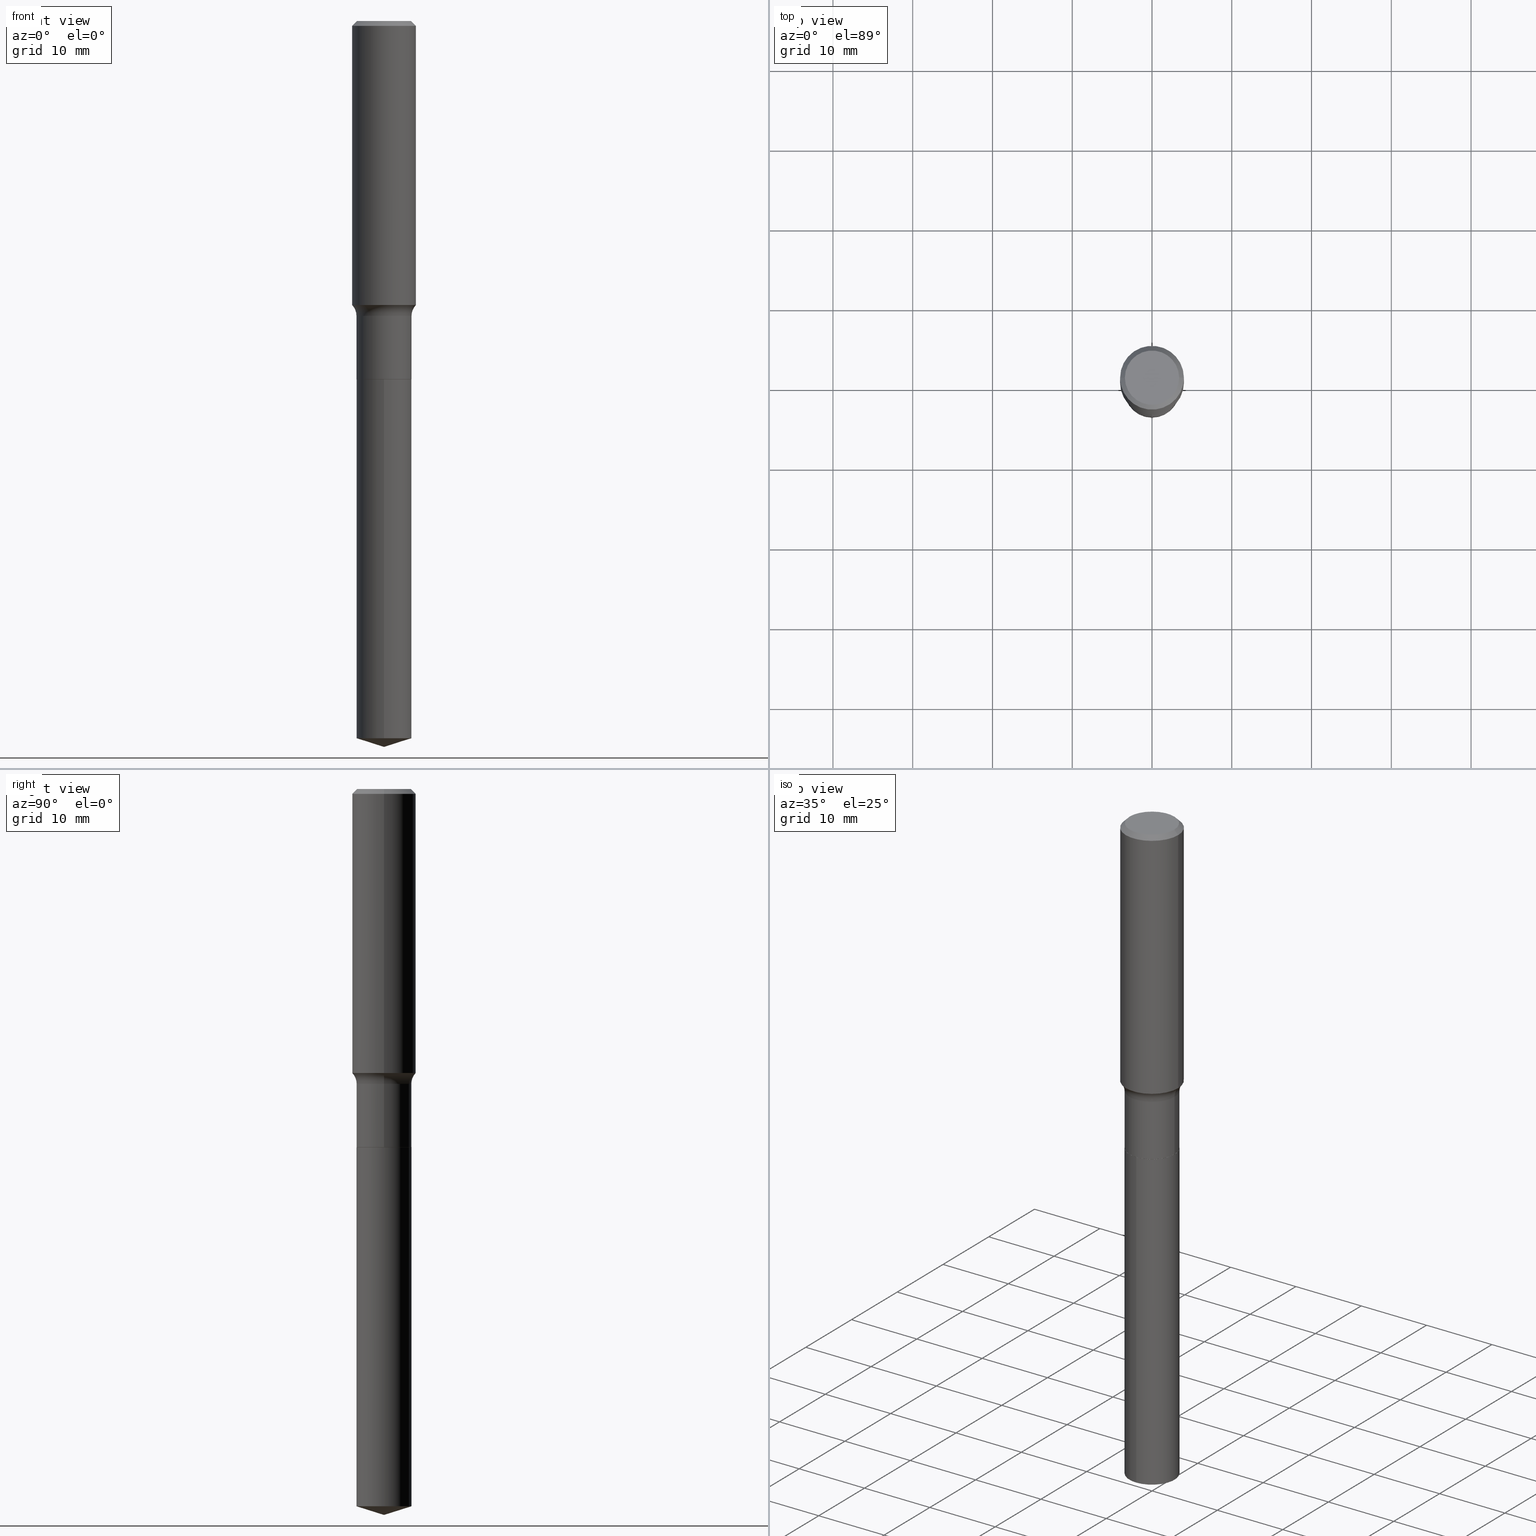
[diagram: canonical four-view strip — front | top / right | iso, engineering-drawing reading convention]
A machine part, canonical four-view strip (front | top / right | iso — engineering-drawing reading convention). The complete STEP part file that produces these views, byte-faithful:
ISO-10303-21;
HEADER;
FILE_DESCRIPTION (( 'STEP AP203' ),
    '1' );
FILE_NAME ('64141.STEP',
    '2024-04-19T15:19:52',
    ( '' ),
    ( '' ),
    'SwSTEP 2.0',
    'SolidWorks 2023',
    '' );
FILE_SCHEMA (( 'CONFIG_CONTROL_DESIGN' ));
ENDSEC;

DATA;
#1 = VERTEX_POINT ( 'NONE', #352 ) ;
#2 = CARTESIAN_POINT ( 'NONE',  ( -0.1575000000000001676, -3.773744865766396882E-15, -1.401367843543948277 ) ) ;
#3 = EDGE_LOOP ( 'NONE', ( #148, #248, #253 ) ) ;
#4 = ADVANCED_FACE ( 'NONE', ( #429 ), #442, .T. ) ;
#5 = DIRECTION ( 'NONE',  ( 1.000000000000000000, 0.000000000000000000, 0.000000000000000000 ) ) ;
#6 = VERTEX_POINT ( 'NONE', #154 ) ;
#7 = CIRCLE ( 'NONE', #168, 0.1358499999999999708 ) ;
#8 = APPLICATION_CONTEXT ( 'configuration controlled 3d designs of mechanical parts and assemblies' ) ;
#9 = APPROVAL_STATUS ( 'not_yet_approved' ) ;
#10 = LINE ( 'NONE', #126, #236 ) ;
#11 = APPROVAL_DATE_TIME ( #357, #312 ) ;
#12 = DIRECTION ( 'NONE',  ( -6.982962677686265133E-15, -1.000000000000000000, 3.500519750498763991E-15 ) ) ;
#13 = CALENDAR_DATE ( 2024, 19, 4 ) ;
#14 = DIRECTION ( 'NONE',  ( 1.000000000000000000, -6.982962677686265133E-15, 4.883557194083112901E-29 ) ) ;
#15 = CC_DESIGN_DATE_AND_TIME_ASSIGNMENT ( #121, #281, ( #353 ) ) ;
#16 = VECTOR ( 'NONE', #222, 39.37007874015748143 ) ;
#17 = AXIS2_PLACEMENT_3D ( 'NONE', #337, #143, #492 ) ;
#18 = COORDINATED_UNIVERSAL_TIME_OFFSET ( 5, 0, .BEHIND. ) ;
#19 = DIRECTION ( 'NONE',  ( -1.000000000000000000, 6.982962677686265922E-15, 0.000000000000000000 ) ) ;
#20 = LINE ( 'NONE', #358, #311 ) ;
#21 = FACE_OUTER_BOUND ( 'NONE', #310, .T. ) ;
#22 = AXIS2_PLACEMENT_3D ( 'NONE', #463, #280, #124 ) ;
#23 = DIRECTION ( 'NONE',  ( 2.445500415812927598E-29, -3.491436072057040114E-15, -1.000000000000000000 ) ) ;
#24 = CARTESIAN_POINT ( 'NONE',  ( 0.1575000000000000011, -1.163014681279185964E-15, -0.02362500000000014588 ) ) ;
#25 = ADVANCED_FACE ( 'NONE', ( #206 ), #363, .F. ) ;
#26 = ORIENTED_EDGE ( 'NONE', *, *, #29, .F. ) ;
#27 = DIRECTION ( 'NONE',  ( -2.445468806185136597E-29, 3.491481338843145583E-15, 1.000000000000000000 ) ) ;
#28 = ORIENTED_EDGE ( 'NONE', *, *, #32, .F. ) ;
#29 = EDGE_CURVE ( 'NONE', #37, #221, #10, .T. ) ;
#30 = AXIS2_PLACEMENT_3D ( 'NONE', #165, #321, #14 ) ;
#31 = CARTESIAN_POINT ( 'NONE',  ( -0.1353499999999999981, -5.210521117955616385E-15, -1.767799999999999816 ) ) ;
#32 = EDGE_CURVE ( 'NONE', #400, #1, #244, .T. ) ;
#33 = ADVANCED_BREP_SHAPE_REPRESENTATION ( '64141', ( #204, #379, #85 ), #50 ) ;
#34 = DIRECTION ( 'NONE',  ( 1.000000000000000000, -6.982962677686268288E-15, 0.000000000000000000 ) ) ;
#35 = ORIENTED_EDGE ( 'NONE', *, *, #210, .T. ) ;
#36 = CARTESIAN_POINT ( 'NONE',  ( 0.1575000000000000011, -1.182302868365756679E-15, -0.02362500000000014588 ) ) ;
#37 = VERTEX_POINT ( 'NONE', #461 ) ;
#38 = FACE_OUTER_BOUND ( 'NONE', #454, .T. ) ;
#39 = CIRCLE ( 'NONE', #339, 0.07799999999999995826 ) ;
#40 = EDGE_LOOP ( 'NONE', ( #226, #330, #259, #304 ) ) ;
#41 = DIRECTION ( 'NONE',  ( 1.000000000000000000, -6.982962677686265133E-15, 0.000000000000000000 ) ) ;
#42 = EDGE_LOOP ( 'NONE', ( #78, #265, #342, #371 ) ) ;
#43 = PERSON_AND_ORGANIZATION ( #120, #175 ) ;
#44 = ORIENTED_EDGE ( 'NONE', *, *, #452, .T. ) ;
#45 = CC_DESIGN_PERSON_AND_ORGANIZATION_ASSIGNMENT ( #43, #459, ( #107 ) ) ;
#46 = CALENDAR_DATE ( 2024, 19, 4 ) ;
#47 = AXIS2_PLACEMENT_3D ( 'NONE', #82, #316, #194 ) ;
#48 = ORIENTED_EDGE ( 'NONE', *, *, #362, .T. ) ;
#49 = VECTOR ( 'NONE', #329, 39.37007874015748143 ) ;
#50 =( GEOMETRIC_REPRESENTATION_CONTEXT ( 3 ) GLOBAL_UNCERTAINTY_ASSIGNED_CONTEXT ( ( #297 ) ) GLOBAL_UNIT_ASSIGNED_CONTEXT ( ( #233, #433, #53 ) ) REPRESENTATION_CONTEXT ( 'NONE', 'WORKASPACE' ) );
#51 = CARTESIAN_POINT ( 'NONE',  ( 8.656689508304857644E-29, -1.235929816798233423E-14, -3.539866659530789939 ) ) ;
#52 = EDGE_CURVE ( 'NONE', #257, #37, #20, .T. ) ;
#53 =( NAMED_UNIT ( * ) SI_UNIT ( $, .STERADIAN. ) SOLID_ANGLE_UNIT ( ) );
#54 = CARTESIAN_POINT ( 'NONE',  ( -0.1358499999999999708, -4.660551574747864359E-15, -1.455299999999999816 ) ) ;
#55 = CARTESIAN_POINT ( 'NONE',  ( 6.814658440794727407E-29, -2.604186862857385143E-15, -1.767800000000000260 ) ) ;
#56 = AXIS2_PLACEMENT_3D ( 'NONE', #381, #147, #453 ) ;
#57 = DATE_TIME_ROLE ( 'classification_date' ) ;
#58 = DIRECTION ( 'NONE',  ( 2.445468806185136597E-29, -3.491481338843145583E-15, -1.000000000000000000 ) ) ;
#59 = APPROVAL_ROLE ( '' ) ;
#60 = DIRECTION ( 'NONE',  ( -2.445468806185136597E-29, 3.491481338843145583E-15, 1.000000000000000000 ) ) ;
#61 = VERTEX_POINT ( 'NONE', #274 ) ;
#62 = DIRECTION ( 'NONE',  ( -2.445468806185136877E-29, 3.491481338843145188E-15, 1.000000000000000000 ) ) ;
#63 = EDGE_CURVE ( 'NONE', #136, #221, #7, .T. ) ;
#64 = CARTESIAN_POINT ( 'NONE',  ( 4.323099755574084481E-29, -6.172240710806911776E-15, -1.767799999999999816 ) ) ;
#65 = CARTESIAN_POINT ( 'NONE',  ( 0.1575000000000000844, -1.099816621735587677E-15, 7.679978421878603638E-30 ) ) ;
#66 = DIRECTION ( 'NONE',  ( 1.000000000000000000, -6.982962677686266711E-15, 4.876170806578254279E-29 ) ) ;
#67 = AXIS2_PLACEMENT_3D ( 'NONE', #55, #324, #209 ) ;
#68 = APPROVAL_PERSON_ORGANIZATION ( #272, #312, #389 ) ;
#69 = LINE ( 'NONE', #184, #457 ) ;
#70 = ORIENTED_EDGE ( 'NONE', *, *, #63, .T. ) ;
#71 = CARTESIAN_POINT ( 'NONE',  ( -1.002970424325033577E-46, 1.431975951230896486E-32, 4.101342130344485961E-18 ) ) ;
#72 = ORIENTED_EDGE ( 'NONE', *, *, #343, .F. ) ;
#73 = CARTESIAN_POINT ( 'NONE',  ( 9.652723065301828668E-16, 0.1358499999999876473, -3.539866659530790383 ) ) ;
#74 = ORIENTED_EDGE ( 'NONE', *, *, #468, .T. ) ;
#75 = CARTESIAN_POINT ( 'NONE',  ( 4.321877021170992240E-29, -6.170494970137492639E-15, -1.767300000000000315 ) ) ;
#76 = CIRCLE ( 'NONE', #359, 0.1353499999999999981 ) ;
#77 = AXIS2_PLACEMENT_3D ( 'NONE', #419, #149, #466 ) ;
#78 = ORIENTED_EDGE ( 'NONE', *, *, #112, .T. ) ;
#79 = DIRECTION ( 'NONE',  ( -6.659769872151621044E-15, -0.9537169507482251563, 0.3007057995042784482 ) ) ;
#80 = EDGE_LOOP ( 'NONE', ( #103, #105, #345, #390 ) ) ;
#81 = CALENDAR_DATE ( 2024, 19, 4 ) ;
#82 = CARTESIAN_POINT ( 'NONE',  ( 3.427001347377658773E-29, -4.892849674588556064E-15, -1.401367843543948277 ) ) ;
#83 = AXIS2_PLACEMENT_3D ( 'NONE', #479, #23, #170 ) ;
#84 = CARTESIAN_POINT ( 'NONE',  ( 3.558890753641229295E-29, -5.081152792418429447E-15, -1.455299999999999816 ) ) ;
#85 = AXIS2_PLACEMENT_3D ( 'NONE', #238, #127, #5 ) ;
#86 = CC_DESIGN_PERSON_AND_ORGANIZATION_ASSIGNMENT ( #195, #242, ( #478 ) ) ;
#87 = CARTESIAN_POINT ( 'NONE',  ( 5.777420054612421104E-31, -8.248624663016984002E-17, -0.02362500000000014588 ) ) ;
#88 = MECHANICAL_CONTEXT ( 'NONE', #356, 'mechanical' ) ;
#89 = DIRECTION ( 'NONE',  ( 1.000000000000000000, -6.982962677686267499E-15, 4.876176775795936353E-29 ) ) ;
#90 = COORDINATED_UNIVERSAL_TIME_OFFSET ( 5, 0, .BEHIND. ) ;
#91 = EDGE_LOOP ( 'NONE', ( #314, #375, #470, #451 ) ) ;
#92 = CONICAL_SURFACE ( 'NONE', #373, 0.1353499999999999981, 0.7853981633978239785 ) ;
#93 = CARTESIAN_POINT ( 'NONE',  ( -0.1358500000000000263, -4.660551574747864359E-15, -1.767300000000000315 ) ) ;
#94 = CARTESIAN_POINT ( 'NONE',  ( 4.323099755574084481E-29, -6.172240710806911776E-15, -1.767799999999999816 ) ) ;
#95 = EDGE_LOOP ( 'NONE', ( #418, #74, #196, #109 ) ) ;
#96 = DIRECTION ( 'NONE',  ( -2.445468806185136597E-29, 3.491481338843145583E-15, 1.000000000000000000 ) ) ;
#97 = ORIENTED_EDGE ( 'NONE', *, *, #489, .F. ) ;
#98 = AXIS2_PLACEMENT_3D ( 'NONE', #51, #119, #318 ) ;
#99 = APPROVAL ( #208, 'UNSPECIFIED' ) ;
#100 = CC_DESIGN_APPROVAL ( #263, ( #107 ) ) ;
#101 = LINE ( 'NONE', #65, #49 ) ;
#102 = CARTESIAN_POINT ( 'NONE',  ( 4.323099755574085042E-29, -6.172240710806913353E-15, -1.767800000000000260 ) ) ;
#103 = ORIENTED_EDGE ( 'NONE', *, *, #269, .F. ) ;
#104 = LINE ( 'NONE', #341, #16 ) ;
#105 = ORIENTED_EDGE ( 'NONE', *, *, #287, .T. ) ;
#106 = AXIS2_PLACEMENT_3D ( 'NONE', #288, #134, #410 ) ;
#107 = PRODUCT_DEFINITION_FORMATION_WITH_SPECIFIED_SOURCE ( 'ANY', '', #478, .NOT_KNOWN. ) ;
#108 = CARTESIAN_POINT ( 'NONE',  ( 8.761382580732956754E-29, -1.250892806060771228E-14, -3.582699999999999996 ) ) ;
#109 = ORIENTED_EDGE ( 'NONE', *, *, #275, .F. ) ;
#110 = CARTESIAN_POINT ( 'NONE',  ( 9.652723065301826696E-16, 0.1358499999999938090, -1.767800000000000704 ) ) ;
#111 = ORIENTED_EDGE ( 'NONE', *, *, #232, .F. ) ;
#112 = EDGE_CURVE ( 'NONE', #338, #378, #252, .T. ) ;
#113 = LINE ( 'NONE', #303, #430 ) ;
#114 = ORIENTED_EDGE ( 'NONE', *, *, #210, .F. ) ;
#115 = DIRECTION ( 'NONE',  ( -2.445468806185136597E-29, 3.491481338843145583E-15, 1.000000000000000000 ) ) ;
#116 = CONICAL_SURFACE ( 'NONE', #481, 0.1353499999999999981, 0.7853981633978239785 ) ;
#117 = EDGE_LOOP ( 'NONE', ( #397, #426, #246, #423 ) ) ;
#118 = EDGE_CURVE ( 'NONE', #456, #385, #437, .T. ) ;
#119 = DIRECTION ( 'NONE',  ( -2.445500415812927878E-29, 3.491436072057040114E-15, 1.000000000000000000 ) ) ;
#120 = PERSON ( 'UNSPECIFIED', 'UNSPECIFIED', 'UNSPECIFIED', ('UNSPECIFIED'), ('UNSPECIFIED'), ('UNSPECIFIED') ) ;
#121 = DATE_AND_TIME ( #46, #313 ) ;
#122 = CARTESIAN_POINT ( 'NONE',  ( -8.751810546940986882E-28, 1.249492650351285820E-13, 35.78737874015747877 ) ) ;
#123 = CARTESIAN_POINT ( 'NONE',  ( 3.427001347377658773E-29, -4.892849674588556064E-15, -1.401367843543948277 ) ) ;
#124 = DIRECTION ( 'NONE',  ( -6.982962677686266711E-15, -1.000000000000000000, 4.021859394426593130E-15 ) ) ;
#125 = DIRECTION ( 'NONE',  ( 1.000000000000000000, -6.982962677686267499E-15, 0.000000000000000000 ) ) ;
#126 = CARTESIAN_POINT ( 'NONE',  ( 0.1358499999999999708, -9.486354797636791575E-16, 6.624286149918777895E-30 ) ) ;
#127 = DIRECTION ( 'NONE',  ( 0.000000000000000000, 0.000000000000000000, 1.000000000000000000 ) ) ;
#128 = CARTESIAN_POINT ( 'NONE',  ( -5.014852121625167883E-47, 7.159879756154482429E-33, 2.050671065172242981E-18 ) ) ;
#129 = CARTESIAN_POINT ( 'NONE',  ( 0.000000000000000000, 0.000000000000000000, 0.000000000000000000 ) ) ;
#130 = VECTOR ( 'NONE', #441, 39.37007874015748143 ) ;
#131 = CALENDAR_DATE ( 2024, 19, 4 ) ;
#132 = FACE_OUTER_BOUND ( 'NONE', #420, .T. ) ;
#133 = DIRECTION ( 'NONE',  ( -0.7071067811868130271, 7.493145998871311837E-15, 0.7071067811862817853 ) ) ;
#134 = DIRECTION ( 'NONE',  ( -2.445500415812927878E-29, 3.491436072057040114E-15, 1.000000000000000000 ) ) ;
#135 = DIRECTION ( 'NONE',  ( 6.776566513254246305E-15, 0.9537169507482272657, 0.3007057995042718423 ) ) ;
#136 = VERTEX_POINT ( 'NONE', #54 ) ;
#137 = EDGE_CURVE ( 'NONE', #1, #221, #39, .T. ) ;
#138 = DIRECTION ( 'NONE',  ( -1.000000000000000000, 7.105427357601001859E-15, 0.000000000000000000 ) ) ;
#139 = DIRECTION ( 'NONE',  ( -2.445500415812927878E-29, 3.491436072057040114E-15, 1.000000000000000000 ) ) ;
#140 = ORIENTED_EDGE ( 'NONE', *, *, #388, .F. ) ;
#141 = AXIS2_PLACEMENT_3D ( 'NONE', #122, #273, #12 ) ;
#142 = AXIS2_PLACEMENT_3D ( 'NONE', #399, #331, #66 ) ;
#143 = DIRECTION ( 'NONE',  ( -2.445468806185136597E-29, 3.491481338843145583E-15, 1.000000000000000000 ) ) ;
#144 = ORIENTED_EDGE ( 'NONE', *, *, #232, .T. ) ;
#145 = DIRECTION ( 'NONE',  ( -2.445468806185136597E-29, 3.491481338843145583E-15, 1.000000000000000000 ) ) ;
#146 = ORIENTED_EDGE ( 'NONE', *, *, #295, .T. ) ;
#147 = DIRECTION ( 'NONE',  ( -2.445468806185136597E-29, 3.491481338843145583E-15, 1.000000000000000000 ) ) ;
#148 = ORIENTED_EDGE ( 'NONE', *, *, #177, .F. ) ;
#149 = DIRECTION ( 'NONE',  ( 2.445468806185136597E-29, -3.491481338843145583E-15, -1.000000000000000000 ) ) ;
#150 = CIRCLE ( 'NONE', #349, 0.1358499999999999985 ) ;
#151 = ORIENTED_EDGE ( 'NONE', *, *, #287, .F. ) ;
#152 = ADVANCED_FACE ( 'NONE', ( #322 ), #472, .T. ) ;
#153 = APPROVAL_DATE_TIME ( #158, #263 ) ;
#154 = CARTESIAN_POINT ( 'NONE',  ( -0.1353499999999999981, -5.207871890781506762E-15, -1.767799999999999816 ) ) ;
#155 = SECURITY_CLASSIFICATION_LEVEL ( 'unclassified' ) ;
#156 = VERTEX_POINT ( 'NONE', #163 ) ;
#157 = AXIS2_PLACEMENT_3D ( 'NONE', #128, #395, #428 ) ;
#158 = DATE_AND_TIME ( #13, #393 ) ;
#159 = CIRCLE ( 'NONE', #443, 0.1353499999999999981 ) ;
#160 = CYLINDRICAL_SURFACE ( 'NONE', #325, 0.1575000000000000844 ) ;
#161 = ADVANCED_FACE ( 'NONE', ( #241 ), #245, .F. ) ;
#162 = PERSON_AND_ORGANIZATION ( #120, #175 ) ;
#163 = CARTESIAN_POINT ( 'NONE',  ( 0.1338749999999999940, -1.040731925365424925E-15, 4.101342130351393887E-18 ) ) ;
#164 = ADVANCED_FACE ( 'NONE', ( #199 ), #160, .T. ) ;
#165 = CARTESIAN_POINT ( 'NONE',  ( 3.558890753641229295E-29, -5.081152792418429447E-15, -1.455299999999999816 ) ) ;
#166 = DIRECTION ( 'NONE',  ( -2.445500415812927878E-29, 3.491436072057040114E-15, 1.000000000000000000 ) ) ;
#167 = AXIS2_PLACEMENT_3D ( 'NONE', #409, #369, #251 ) ;
#168 = AXIS2_PLACEMENT_3D ( 'NONE', #84, #239, #394 ) ;
#169 = SECURITY_CLASSIFICATION ( '', '', #155 ) ;
#170 = DIRECTION ( 'NONE',  ( 6.982962677686265922E-15, 1.000000000000000000, -3.491436072057040114E-15 ) ) ;
#171 = FACE_OUTER_BOUND ( 'NONE', #179, .T. ) ;
#172 = DIRECTION ( 'NONE',  ( 1.000000000000000000, -6.982962677686265133E-15, 0.000000000000000000 ) ) ;
#173 = ADVANCED_FACE ( 'NONE', ( #243 ), #396, .F. ) ;
#174 = AXIS2_PLACEMENT_3D ( 'NONE', #71, #422, #335 ) ;
#175 = ORGANIZATION ( 'UNSPECIFIED', 'UNSPECIFIED', '' ) ;
#176 = LINE ( 'NONE', #228, #213 ) ;
#177 = EDGE_CURVE ( 'NONE', #262, #378, #446, .T. ) ;
#178 = DIRECTION ( 'NONE',  ( 1.000000000000000000, -6.982962677686266711E-15, 4.876176775795936353E-29 ) ) ;
#179 = EDGE_LOOP ( 'NONE', ( #190, #229 ) ) ;
#180 = CARTESIAN_POINT ( 'NONE',  ( -8.751810546940986882E-28, 1.249492650351285820E-13, 35.78737874015747877 ) ) ;
#181 = ORIENTED_EDGE ( 'NONE', *, *, #452, .F. ) ;
#182 = AXIS2_PLACEMENT_3D ( 'NONE', #270, #139, #425 ) ;
#183 = AXIS2_PLACEMENT_3D ( 'NONE', #220, #484, #138 ) ;
#184 = CARTESIAN_POINT ( 'NONE',  ( 9.652723065301390850E-16, 0.1358499999999938368, -1.767800000000000704 ) ) ;
#185 = EDGE_CURVE ( 'NONE', #221, #136, #237, .T. ) ;
#186 = EDGE_LOOP ( 'NONE', ( #307, #146 ) ) ;
#187 = DIRECTION ( 'NONE',  ( 1.000000000000000000, -6.982962677686268288E-15, 0.000000000000000000 ) ) ;
#188 = EDGE_LOOP ( 'NONE', ( #181, #97, #348, #223 ) ) ;
#189 = PERSON_AND_ORGANIZATION_ROLE ( 'design_supplier' ) ;
#190 = ORIENTED_EDGE ( 'NONE', *, *, #224, .T. ) ;
#191 = ADVANCED_FACE ( 'NONE', ( #21 ), #290, .T. ) ;
#192 = APPLICATION_PROTOCOL_DEFINITION ( 'international standard', 'config_control_design', 1994, #356 ) ;
#193 = AXIS2_PLACEMENT_3D ( 'NONE', #364, #60, #439 ) ;
#194 = DIRECTION ( 'NONE',  ( 1.000000000000000000, -6.982962677686267499E-15, 0.000000000000000000 ) ) ;
#195 = PERSON_AND_ORGANIZATION ( #120, #175 ) ;
#196 = ORIENTED_EDGE ( 'NONE', *, *, #415, .F. ) ;
#197 = APPROVAL_STATUS ( 'not_yet_approved' ) ;
#198 = ADVANCED_FACE ( 'NONE', ( #249 ), #92, .T. ) ;
#199 = FACE_OUTER_BOUND ( 'NONE', #95, .T. ) ;
#200 = PERSON_AND_ORGANIZATION ( #120, #175 ) ;
#201 = VECTOR ( 'NONE', #133, 39.37007874015748854 ) ;
#202 = DIRECTION ( 'NONE',  ( -2.445468806185136877E-29, 3.491481338843145188E-15, 1.000000000000000000 ) ) ;
#203 = CC_DESIGN_SECURITY_CLASSIFICATION ( #169, ( #107 ) ) ;
#204 = MANIFOLD_SOLID_BREP ( 'Body-Move/Copy2[1]', #289 ) ;
#205 = COORDINATED_UNIVERSAL_TIME_OFFSET ( 5, 0, .BEHIND. ) ;
#206 = FACE_OUTER_BOUND ( 'NONE', #186, .T. ) ;
#207 = EDGE_CURVE ( 'NONE', #378, #338, #150, .T. ) ;
#208 = APPROVAL_STATUS ( 'not_yet_approved' ) ;
#209 = DIRECTION ( 'NONE',  ( 1.000000000000000000, -6.982962677686265922E-15, 4.876176775795935793E-29 ) ) ;
#210 = EDGE_CURVE ( 'NONE', #156, #411, #475, .T. ) ;
#211 = DATE_AND_TIME ( #277, #444 ) ;
#212 = CARTESIAN_POINT ( 'NONE',  ( -0.1358499999999999708, 9.652723065300958949E-16, -6.682373320111289082E-30 ) ) ;
#213 = VECTOR ( 'NONE', #487, 39.37007874015748143 ) ;
#214 = DIMENSIONAL_EXPONENTS ( 1.000000000000000000, 0.000000000000000000, 0.000000000000000000, 0.000000000000000000, 0.000000000000000000, 0.000000000000000000, 0.000000000000000000 ) ;
#215 = DIRECTION ( 'NONE',  ( -2.445500415812927878E-29, 3.491436072057040114E-15, 1.000000000000000000 ) ) ;
#216 = CARTESIAN_POINT ( 'NONE',  ( 8.761495319727485540E-29, -1.250876801535875845E-14, -3.582699999999999996 ) ) ;
#217 = DIRECTION ( 'NONE',  ( 1.000000000000000000, -6.982962677686266711E-15, 4.876176775795936353E-29 ) ) ;
#218 = VERTEX_POINT ( 'NONE', #93 ) ;
#219 = AXIS2_PLACEMENT_3D ( 'NONE', #87, #58, #19 ) ;
#220 = CARTESIAN_POINT ( 'NONE',  ( -0.2138499999999999290, -3.561657151995455309E-15, -1.455299999999999816 ) ) ;
#221 = VERTEX_POINT ( 'NONE', #368 ) ;
#222 = DIRECTION ( 'NONE',  ( -2.445500415812928158E-29, 3.491436072057040114E-15, 1.000000000000000000 ) ) ;
#223 = ORIENTED_EDGE ( 'NONE', *, *, #185, .T. ) ;
#224 = EDGE_CURVE ( 'NONE', #385, #456, #301, .T. ) ;
#225 = FACE_OUTER_BOUND ( 'NONE', #80, .T. ) ;
#226 = ORIENTED_EDGE ( 'NONE', *, *, #440, .F. ) ;
#227 = AXIS2_PLACEMENT_3D ( 'NONE', #75, #145, #187 ) ;
#228 = CARTESIAN_POINT ( 'NONE',  ( -0.1575000000000000011, 1.017330375105417098E-15, -0.02362500000000014588 ) ) ;
#229 = ORIENTED_EDGE ( 'NONE', *, *, #118, .T. ) ;
#230 = DIRECTION ( 'NONE',  ( -2.445500415812928158E-29, 3.491436072057040114E-15, 1.000000000000000000 ) ) ;
#231 = EDGE_LOOP ( 'NONE', ( #449, #144, #271, #26 ) ) ;
#232 = EDGE_CURVE ( 'NONE', #218, #136, #476, .T. ) ;
#233 =( CONVERSION_BASED_UNIT ( 'INCH', #431 ) LENGTH_UNIT ( ) NAMED_UNIT ( #214 ) );
#234 = DIRECTION ( 'NONE',  ( -6.982962677686266711E-15, -1.000000000000000000, 3.491481338843145583E-15 ) ) ;
#235 = ADVANCED_FACE ( 'NONE', ( #171 ), #247, .F. ) ;
#236 = VECTOR ( 'NONE', #202, 39.37007874015748143 ) ;
#237 = CIRCLE ( 'NONE', #193, 0.1358499999999999708 ) ;
#238 = CARTESIAN_POINT ( 'NONE',  ( 0.000000000000000000, 0.000000000000000000, 0.000000000000000000 ) ) ;
#239 = DIRECTION ( 'NONE',  ( -2.445468806185136597E-29, 3.491481338843145583E-15, 1.000000000000000000 ) ) ;
#240 = ADVANCED_FACE ( 'NONE', ( #132 ), #291, .F. ) ;
#241 = FACE_OUTER_BOUND ( 'NONE', #188, .T. ) ;
#242 = PERSON_AND_ORGANIZATION_ROLE ( 'design_owner' ) ;
#243 = FACE_OUTER_BOUND ( 'NONE', #382, .T. ) ;
#244 = CIRCLE ( 'NONE', #47, 0.1575000000000001676 ) ;
#245 = TOROIDAL_SURFACE ( 'NONE', #30, 0.2138499999999999290, 0.07799999999999995826 ) ;
#246 = ORIENTED_EDGE ( 'NONE', *, *, #275, .T. ) ;
#247 = PLANE ( 'NONE',  #83 ) ;
#248 = ORIENTED_EDGE ( 'NONE', *, *, #403, .T. ) ;
#249 = FACE_OUTER_BOUND ( 'NONE', #91, .T. ) ;
#250 = ORIENTED_EDGE ( 'NONE', *, *, #295, .F. ) ;
#251 = DIRECTION ( 'NONE',  ( 1.000000000000000000, -6.982962677686265133E-15, 4.883557194083112901E-29 ) ) ;
#252 = CIRCLE ( 'NONE', #98, 0.1358499999999999985 ) ;
#253 = ORIENTED_EDGE ( 'NONE', *, *, #207, .F. ) ;
#254 = APPROVAL_PERSON_ORGANIZATION ( #351, #263, #315 ) ;
#255 = DIRECTION ( 'NONE',  ( -2.445468806185136597E-29, 3.491481338843145583E-15, 1.000000000000000000 ) ) ;
#256 = CARTESIAN_POINT ( 'NONE',  ( 8.761494339732977265E-29, -1.250876801535875529E-14, -3.582699999999999996 ) ) ;
#257 = VERTEX_POINT ( 'NONE', #328 ) ;
#258 = CARTESIAN_POINT ( 'NONE',  ( 5.777420054612421104E-31, -8.248624663016984002E-17, -0.02362500000000014588 ) ) ;
#259 = ORIENTED_EDGE ( 'NONE', *, *, #380, .T. ) ;
#260 = CIRCLE ( 'NONE', #302, 0.1358499999999999985 ) ;
#261 = LINE ( 'NONE', #108, #424 ) ;
#262 = VERTEX_POINT ( 'NONE', #256 ) ;
#263 = APPROVAL ( #9, 'UNSPECIFIED' ) ;
#264 = FACE_OUTER_BOUND ( 'NONE', #491, .T. ) ;
#265 = ORIENTED_EDGE ( 'NONE', *, *, #440, .T. ) ;
#266 = CARTESIAN_POINT ( 'NONE',  ( -9.486354797635925800E-16, -0.1358500000000124053, -3.539866659530789050 ) ) ;
#267 = ORIENTED_EDGE ( 'NONE', *, *, #403, .F. ) ;
#268 = CIRCLE ( 'NONE', #56, 0.1575000000000000011 ) ;
#269 = EDGE_CURVE ( 'NONE', #6, #218, #286, .T. ) ;
#270 = CARTESIAN_POINT ( 'NONE',  ( 4.323099755574085042E-29, -6.172240710806913353E-15, -1.767800000000000260 ) ) ;
#271 = ORIENTED_EDGE ( 'NONE', *, *, #185, .F. ) ;
#272 = PERSON_AND_ORGANIZATION ( #120, #175 ) ;
#273 = DIRECTION ( 'NONE',  ( -2.445500415812927878E-29, 3.491436072057040114E-15, 1.000000000000000000 ) ) ;
#274 = CARTESIAN_POINT ( 'NONE',  ( -0.1338749999999999940, 9.760872517903331886E-16, 4.101342130337804525E-18 ) ) ;
#275 = EDGE_CURVE ( 'NONE', #1, #411, #101, .T. ) ;
#276 = AXIS2_PLACEMENT_3D ( 'NONE', #258, #344, #309 ) ;
#277 = CALENDAR_DATE ( 2024, 19, 4 ) ;
#278 = CARTESIAN_POINT ( 'NONE',  ( 0.2138499999999999290, -6.574459361041637242E-15, -1.455299999999999816 ) ) ;
#279 =( LENGTH_UNIT ( ) NAMED_UNIT ( * ) SI_UNIT ( $, .METRE. ) );
#280 = DIRECTION ( 'NONE',  ( -2.445500415812927878E-29, 3.491436072057040114E-15, 1.000000000000000000 ) ) ;
#281 = DATE_TIME_ROLE ( 'creation_date' ) ;
#282 = DIRECTION ( 'NONE',  ( 0.7071067811868130271, -2.468850131085038979E-15, 0.7071067811862817853 ) ) ;
#283 = ADVANCED_FACE ( 'NONE', ( #406 ), #471, .T. ) ;
#284 = DIRECTION ( 'NONE',  ( -2.445468806185136597E-29, 3.491481338843145583E-15, 1.000000000000000000 ) ) ;
#285 = CC_DESIGN_APPROVAL ( #312, ( #353 ) ) ;
#286 = LINE ( 'NONE', #31, #201 ) ;
#287 = EDGE_CURVE ( 'NONE', #6, #257, #159, .T. ) ;
#288 = CARTESIAN_POINT ( 'NONE',  ( 4.323099755574085042E-29, -6.172240710806913353E-15, -1.767800000000000260 ) ) ;
#289 = CLOSED_SHELL ( 'NONE', ( #283, #435, #4, #365, #235 ) ) ;
#290 = CYLINDRICAL_SURFACE ( 'NONE', #366, 0.1358499999999999708 ) ;
#291 = TOROIDAL_SURFACE ( 'NONE', #167, 0.2138499999999999290, 0.07799999999999995826 ) ;
#292 = CONICAL_SURFACE ( 'NONE', #77, 0.1575000000000000011, 0.7853981633974449483 ) ;
#293 = DIRECTION ( 'NONE',  ( -6.982962677686266711E-15, -1.000000000000000000, 4.021859394426593130E-15 ) ) ;
#294 = ORIENTED_EDGE ( 'NONE', *, *, #63, .F. ) ;
#295 = EDGE_CURVE ( 'NONE', #156, #61, #392, .T. ) ;
#296 = CARTESIAN_POINT ( 'NONE',  ( -0.1575000000000000011, -1.368563151787204140E-15, -0.02362500000000014588 ) ) ;
#297 = UNCERTAINTY_MEASURE_WITH_UNIT (LENGTH_MEASURE( 1.000000000000000082E-05 ), #233, 'distance_accuracy_value', 'NONE');
#298 = FACE_OUTER_BOUND ( 'NONE', #117, .T. ) ;
#299 = CC_DESIGN_PERSON_AND_ORGANIZATION_ASSIGNMENT ( #347, #317, ( #169 ) ) ;
#300 = ORIENTED_EDGE ( 'NONE', *, *, #112, .F. ) ;
#301 = CIRCLE ( 'NONE', #413, 0.1358499999999999985 ) ;
#302 = AXIS2_PLACEMENT_3D ( 'NONE', #447, #374, #34 ) ;
#303 = CARTESIAN_POINT ( 'NONE',  ( -0.1575000000000000844, 1.119104808822158392E-15, -7.747322767151481189E-30 ) ) ;
#304 = ORIENTED_EDGE ( 'NONE', *, *, #118, .F. ) ;
#305 = PRODUCT_DEFINITION_SHAPE ( 'NONE', 'NONE',  #353 ) ;
#306 = CYLINDRICAL_SURFACE ( 'NONE', #182, 0.1358499999999999985 ) ;
#307 = ORIENTED_EDGE ( 'NONE', *, *, #376, .T. ) ;
#308 = ADVANCED_FACE ( 'NONE', ( #372 ), #483, .T. ) ;
#309 = DIRECTION ( 'NONE',  ( 1.000000000000000000, -6.982962677686265922E-15, 0.000000000000000000 ) ) ;
#310 = EDGE_LOOP ( 'NONE', ( #111, #486, #458, #294 ) ) ;
#311 = VECTOR ( 'NONE', #282, 39.37007874015748854 ) ;
#312 = APPROVAL ( #197, 'UNSPECIFIED' ) ;
#313 = LOCAL_TIME ( 11, 19, 52.00000000000000000, #18 ) ;
#314 = ORIENTED_EDGE ( 'NONE', *, *, #388, .T. ) ;
#315 = APPROVAL_ROLE ( '' ) ;
#316 = DIRECTION ( 'NONE',  ( -2.445468806185136597E-29, 3.491481338843145583E-15, 1.000000000000000000 ) ) ;
#317 = PERSON_AND_ORGANIZATION_ROLE ( 'classification_officer' ) ;
#318 = DIRECTION ( 'NONE',  ( -6.982962677686266711E-15, -1.000000000000000000, 4.021859394426593130E-15 ) ) ;
#319 = CC_DESIGN_DATE_AND_TIME_ASSIGNMENT ( #211, #57, ( #169 ) ) ;
#320 = VECTOR ( 'NONE', #62, 39.37007874015748143 ) ;
#321 = DIRECTION ( 'NONE',  ( -2.445468806185136597E-29, 3.491481338843145583E-15, 1.000000000000000000 ) ) ;
#322 = FACE_OUTER_BOUND ( 'NONE', #407, .T. ) ;
#323 = EDGE_CURVE ( 'NONE', #218, #37, #332, .T. ) ;
#324 = DIRECTION ( 'NONE',  ( -2.438088387897960049E-29, 3.491481338843145188E-15, 1.000000000000000000 ) ) ;
#325 = AXIS2_PLACEMENT_3D ( 'NONE', #467, #434, #89 ) ;
#326 = DIRECTION ( 'NONE',  ( -6.982962677686266711E-15, -1.000000000000000000, 4.021859394426593130E-15 ) ) ;
#327 = CONICAL_SURFACE ( 'NONE', #482, 124.8659371009129444, 1.265363707695886797 ) ;
#328 = CARTESIAN_POINT ( 'NONE',  ( 0.1353499999999999981, -7.117384709231748518E-15, -1.767799999999999816 ) ) ;
#329 = DIRECTION ( 'NONE',  ( -2.445468806185136877E-29, 3.491481338843145188E-15, 1.000000000000000000 ) ) ;
#330 = ORIENTED_EDGE ( 'NONE', *, *, #207, .T. ) ;
#331 = DIRECTION ( 'NONE',  ( -2.445468806185136597E-29, 3.491481338843145583E-15, 1.000000000000000000 ) ) ;
#332 = CIRCLE ( 'NONE', #227, 0.1358499999999999985 ) ;
#333 = DESIGN_CONTEXT ( 'detailed design', #8, 'design' ) ;
#334 = DIRECTION ( 'NONE',  ( -2.445500415812927878E-29, 3.491436072057040114E-15, 1.000000000000000000 ) ) ;
#335 = DIRECTION ( 'NONE',  ( 1.000000000000000000, -6.982962677686266711E-15, 4.876170806578254279E-29 ) ) ;
#336 = ORIENTED_EDGE ( 'NONE', *, *, #376, .F. ) ;
#337 = CARTESIAN_POINT ( 'NONE',  ( 0.000000000000000000, 0.000000000000000000, 0.000000000000000000 ) ) ;
#338 = VERTEX_POINT ( 'NONE', #266 ) ;
#339 = AXIS2_PLACEMENT_3D ( 'NONE', #278, #234, #432 ) ;
#340 = LOCAL_TIME ( 11, 19, 52.00000000000000000, #427 ) ;
#341 = CARTESIAN_POINT ( 'NONE',  ( -9.486354797636361646E-16, -0.1358500000000061603, -1.767799999999999594 ) ) ;
#342 = ORIENTED_EDGE ( 'NONE', *, *, #224, .F. ) ;
#343 = EDGE_CURVE ( 'NONE', #61, #355, #176, .T. ) ;
#344 = DIRECTION ( 'NONE',  ( -2.445468806185136597E-29, 3.491481338843145583E-15, 1.000000000000000000 ) ) ;
#345 = ORIENTED_EDGE ( 'NONE', *, *, #52, .T. ) ;
#346 = CC_DESIGN_PERSON_AND_ORGANIZATION_ASSIGNMENT ( #200, #360, ( #353 ) ) ;
#347 = PERSON_AND_ORGANIZATION ( #120, #175 ) ;
#348 = ORIENTED_EDGE ( 'NONE', *, *, #137, .T. ) ;
#349 = AXIS2_PLACEMENT_3D ( 'NONE', #438, #166, #326 ) ;
#350 = LOCAL_TIME ( 11, 19, 52.00000000000000000, #205 ) ;
#351 = PERSON_AND_ORGANIZATION ( #120, #175 ) ;
#352 = CARTESIAN_POINT ( 'NONE',  ( 0.1575000000000001676, -5.992666296324145122E-15, -1.401367843543948277 ) ) ;
#353 = PRODUCT_DEFINITION ( 'UNKNOWN', '', #107, #333 ) ;
#354 = APPLICATION_PROTOCOL_DEFINITION ( 'international standard', 'config_control_design', 1994, #8 ) ;
#355 = VERTEX_POINT ( 'NONE', #296 ) ;
#356 = APPLICATION_CONTEXT ( 'configuration controlled 3d designs of mechanical parts and assemblies' ) ;
#357 = DATE_AND_TIME ( #81, #340 ) ;
#358 = CARTESIAN_POINT ( 'NONE',  ( 0.1353499999999999981, -7.117384709231748518E-15, -1.767799999999999816 ) ) ;
#359 = AXIS2_PLACEMENT_3D ( 'NONE', #412, #115, #377 ) ;
#360 = PERSON_AND_ORGANIZATION_ROLE ( 'creator' ) ;
#361 = ORIENTED_EDGE ( 'NONE', *, *, #343, .T. ) ;
#362 = EDGE_CURVE ( 'NONE', #355, #411, #465, .T. ) ;
#363 = PLANE ( 'NONE',  #157 ) ;
#364 = CARTESIAN_POINT ( 'NONE',  ( 3.558890753641229295E-29, -5.081152792418429447E-15, -1.455299999999999816 ) ) ;
#365 = ADVANCED_FACE ( 'NONE', ( #417 ), #306, .T. ) ;
#366 = AXIS2_PLACEMENT_3D ( 'NONE', #402, #96, #217 ) ;
#367 = CIRCLE ( 'NONE', #416, 0.1575000000000001676 ) ;
#368 = CARTESIAN_POINT ( 'NONE',  ( 0.1358499999999999708, -6.029788272182108407E-15, -1.455299999999999816 ) ) ;
#369 = DIRECTION ( 'NONE',  ( -2.445468806185136597E-29, 3.491481338843145583E-15, 1.000000000000000000 ) ) ;
#370 = ORIENTED_EDGE ( 'NONE', *, *, #415, .T. ) ;
#371 = ORIENTED_EDGE ( 'NONE', *, *, #380, .F. ) ;
#372 = FACE_OUTER_BOUND ( 'NONE', #231, .T. ) ;
#373 = AXIS2_PLACEMENT_3D ( 'NONE', #64, #255, #445 ) ;
#374 = DIRECTION ( 'NONE',  ( -2.445468806185136597E-29, 3.491481338843145583E-15, 1.000000000000000000 ) ) ;
#375 = ORIENTED_EDGE ( 'NONE', *, *, #269, .T. ) ;
#376 = EDGE_CURVE ( 'NONE', #61, #156, #404, .T. ) ;
#377 = DIRECTION ( 'NONE',  ( 1.000000000000000000, -6.982962677686265133E-15, 0.000000000000000000 ) ) ;
#378 = VERTEX_POINT ( 'NONE', #73 ) ;
#379 = MANIFOLD_SOLID_BREP ( 'Body-Move/Copy2[2]', #436 ) ;
#380 = EDGE_CURVE ( 'NONE', #338, #385, #104, .T. ) ;
#381 = CARTESIAN_POINT ( 'NONE',  ( 5.777420054612421104E-31, -8.248624663016984002E-17, -0.02362500000000014588 ) ) ;
#382 = EDGE_LOOP ( 'NONE', ( #140, #151 ) ) ;
#383 = VECTOR ( 'NONE', #135, 39.37007874015748854 ) ;
#384 = DIRECTION ( 'NONE',  ( -2.445468806185136597E-29, 3.491481338843145583E-15, 1.000000000000000000 ) ) ;
#385 = VERTEX_POINT ( 'NONE', #485 ) ;
#386 = CARTESIAN_POINT ( 'NONE',  ( 4.323099755574084481E-29, -6.172240710806911776E-15, -1.767799999999999816 ) ) ;
#387 = ORIENTED_EDGE ( 'NONE', *, *, #137, .F. ) ;
#388 = EDGE_CURVE ( 'NONE', #257, #6, #76, .T. ) ;
#389 = APPROVAL_ROLE ( '' ) ;
#390 = ORIENTED_EDGE ( 'NONE', *, *, #323, .F. ) ;
#391 = ADVANCED_FACE ( 'NONE', ( #225 ), #116, .T. ) ;
#392 = CIRCLE ( 'NONE', #142, 0.1338749999999999940 ) ;
#393 = LOCAL_TIME ( 11, 19, 52.00000000000000000, #90 ) ;
#394 = DIRECTION ( 'NONE',  ( 1.000000000000000000, -6.982962677686262766E-15, 0.000000000000000000 ) ) ;
#395 = DIRECTION ( 'NONE',  ( 2.438088387897960049E-29, -3.491481338843145188E-15, -1.000000000000000000 ) ) ;
#396 = PLANE ( 'NONE',  #67 ) ;
#397 = ORIENTED_EDGE ( 'NONE', *, *, #468, .F. ) ;
#398 = APPROVAL_DATE_TIME ( #477, #99 ) ;
#399 = CARTESIAN_POINT ( 'NONE',  ( -1.002970424325033577E-46, 1.431975951230896486E-32, 4.101342130344485961E-18 ) ) ;
#400 = VERTEX_POINT ( 'NONE', #2 ) ;
#401 = SHAPE_DEFINITION_REPRESENTATION ( #305, #33 ) ;
#402 = CARTESIAN_POINT ( 'NONE',  ( 0.000000000000000000, 0.000000000000000000, 0.000000000000000000 ) ) ;
#403 = EDGE_CURVE ( 'NONE', #262, #338, #261, .T. ) ;
#404 = CIRCLE ( 'NONE', #174, 0.1338749999999999940 ) ;
#405 = CIRCLE ( 'NONE', #183, 0.07799999999999995826 ) ;
#406 = FACE_OUTER_BOUND ( 'NONE', #42, .T. ) ;
#407 = EDGE_LOOP ( 'NONE', ( #114, #336, #361, #48 ) ) ;
#408 = PERSON_AND_ORGANIZATION ( #120, #175 ) ;
#409 = CARTESIAN_POINT ( 'NONE',  ( 3.558890753641229295E-29, -5.081152792418429447E-15, -1.455299999999999816 ) ) ;
#410 = DIRECTION ( 'NONE',  ( -6.982962677686266711E-15, -1.000000000000000000, 4.021859394426593130E-15 ) ) ;
#411 = VERTEX_POINT ( 'NONE', #36 ) ;
#412 = CARTESIAN_POINT ( 'NONE',  ( 4.323099755574084481E-29, -6.172240710806911776E-15, -1.767799999999999816 ) ) ;
#413 = AXIS2_PLACEMENT_3D ( 'NONE', #102, #215, #293 ) ;
#414 = ORIENTED_EDGE ( 'NONE', *, *, #177, .T. ) ;
#415 = EDGE_CURVE ( 'NONE', #411, #355, #268, .T. ) ;
#416 = AXIS2_PLACEMENT_3D ( 'NONE', #123, #469, #125 ) ;
#417 = FACE_OUTER_BOUND ( 'NONE', #40, .T. ) ;
#418 = ORIENTED_EDGE ( 'NONE', *, *, #489, .T. ) ;
#419 = CARTESIAN_POINT ( 'NONE',  ( 5.777420054612421104E-31, -8.248624663016984002E-17, -0.02362500000000014588 ) ) ;
#420 = EDGE_LOOP ( 'NONE', ( #28, #44, #70, #387 ) ) ;
#421 = PRODUCT_RELATED_PRODUCT_CATEGORY ( 'detail', '', ( #478 ) ) ;
#422 = DIRECTION ( 'NONE',  ( -2.445468806185136597E-29, 3.491481338843145583E-15, 1.000000000000000000 ) ) ;
#423 = ORIENTED_EDGE ( 'NONE', *, *, #362, .F. ) ;
#424 = VECTOR ( 'NONE', #79, 39.37007874015748854 ) ;
#425 = DIRECTION ( 'NONE',  ( -6.982962677686266711E-15, -1.000000000000000000, 4.021859394426593130E-15 ) ) ;
#426 = ORIENTED_EDGE ( 'NONE', *, *, #32, .T. ) ;
#427 = COORDINATED_UNIVERSAL_TIME_OFFSET ( 5, 0, .BEHIND. ) ;
#428 = DIRECTION ( 'NONE',  ( -1.000000000000000000, 6.982962677686265922E-15, -4.876176775795935793E-29 ) ) ;
#429 = FACE_OUTER_BOUND ( 'NONE', #3, .T. ) ;
#430 = VECTOR ( 'NONE', #450, 39.37007874015748143 ) ;
#431 = LENGTH_MEASURE_WITH_UNIT ( LENGTH_MEASURE( 0.02539999999999999897 ), #279 );
#432 = DIRECTION ( 'NONE',  ( 1.000000000000000000, -6.982962677686261977E-15, 0.000000000000000000 ) ) ;
#433 =( NAMED_UNIT ( * ) PLANE_ANGLE_UNIT ( ) SI_UNIT ( $, .RADIAN. ) );
#434 = DIRECTION ( 'NONE',  ( -2.445468806185136597E-29, 3.491481338843145583E-15, 1.000000000000000000 ) ) ;
#435 = ADVANCED_FACE ( 'NONE', ( #38 ), #327, .T. ) ;
#436 = CLOSED_SHELL ( 'NONE', ( #198, #480, #164, #240, #308, #191, #161, #464, #152, #25, #173, #391 ) ) ;
#437 = CIRCLE ( 'NONE', #22, 0.1358499999999999985 ) ;
#438 = CARTESIAN_POINT ( 'NONE',  ( 8.656689508304857644E-29, -1.235929816798233423E-14, -3.539866659530789939 ) ) ;
#439 = DIRECTION ( 'NONE',  ( 1.000000000000000000, -6.982962677686262766E-15, 0.000000000000000000 ) ) ;
#440 = EDGE_CURVE ( 'NONE', #378, #456, #69, .T. ) ;
#441 = DIRECTION ( 'NONE',  ( 0.7071067811865451302, -7.319954787623248157E-15, -0.7071067811865499042 ) ) ;
#442 = CONICAL_SURFACE ( 'NONE', #141, 124.8659371009129444, 1.265363707695886797 ) ;
#443 = AXIS2_PLACEMENT_3D ( 'NONE', #94, #27, #172 ) ;
#444 = LOCAL_TIME ( 11, 19, 52.00000000000000000, #462 ) ;
#445 = DIRECTION ( 'NONE',  ( 1.000000000000000000, -6.982962677686265133E-15, 0.000000000000000000 ) ) ;
#446 = LINE ( 'NONE', #216, #383 ) ;
#447 = CARTESIAN_POINT ( 'NONE',  ( 4.321877021170992240E-29, -6.170494970137492639E-15, -1.767300000000000315 ) ) ;
#448 = CYLINDRICAL_SURFACE ( 'NONE', #17, 0.1575000000000000844 ) ;
#449 = ORIENTED_EDGE ( 'NONE', *, *, #460, .T. ) ;
#450 = DIRECTION ( 'NONE',  ( -2.445468806185136877E-29, 3.491481338843145188E-15, 1.000000000000000000 ) ) ;
#451 = ORIENTED_EDGE ( 'NONE', *, *, #52, .F. ) ;
#452 = EDGE_CURVE ( 'NONE', #400, #136, #405, .T. ) ;
#453 = DIRECTION ( 'NONE',  ( 1.000000000000000000, -6.982962677686265922E-15, 0.000000000000000000 ) ) ;
#454 = EDGE_LOOP ( 'NONE', ( #267, #414, #300 ) ) ;
#455 = DIRECTION ( 'NONE',  ( -6.982962677686265133E-15, -1.000000000000000000, 3.500519750498763991E-15 ) ) ;
#456 = VERTEX_POINT ( 'NONE', #110 ) ;
#457 = VECTOR ( 'NONE', #230, 39.37007874015748143 ) ;
#458 = ORIENTED_EDGE ( 'NONE', *, *, #29, .T. ) ;
#459 = PERSON_AND_ORGANIZATION_ROLE ( 'creator' ) ;
#460 = EDGE_CURVE ( 'NONE', #37, #218, #260, .T. ) ;
#461 = CARTESIAN_POINT ( 'NONE',  ( 0.1358499999999999985, -7.119130449901172388E-15, -1.767300000000000315 ) ) ;
#462 = COORDINATED_UNIVERSAL_TIME_OFFSET ( 5, 0, .BEHIND. ) ;
#463 = CARTESIAN_POINT ( 'NONE',  ( 4.323099755574085042E-29, -6.172240710806913353E-15, -1.767800000000000260 ) ) ;
#464 = ADVANCED_FACE ( 'NONE', ( #298 ), #448, .T. ) ;
#465 = CIRCLE ( 'NONE', #276, 0.1575000000000000011 ) ;
#466 = DIRECTION ( 'NONE',  ( -1.000000000000000000, 6.982962677686265922E-15, 0.000000000000000000 ) ) ;
#467 = CARTESIAN_POINT ( 'NONE',  ( 0.000000000000000000, 0.000000000000000000, 0.000000000000000000 ) ) ;
#468 = EDGE_CURVE ( 'NONE', #400, #355, #113, .T. ) ;
#469 = DIRECTION ( 'NONE',  ( -2.445468806185136597E-29, 3.491481338843145583E-15, 1.000000000000000000 ) ) ;
#470 = ORIENTED_EDGE ( 'NONE', *, *, #460, .F. ) ;
#471 = CYLINDRICAL_SURFACE ( 'NONE', #106, 0.1358499999999999985 ) ;
#472 = CONICAL_SURFACE ( 'NONE', #219, 0.1575000000000000011, 0.7853981633974449483 ) ;
#473 = CC_DESIGN_APPROVAL ( #99, ( #169 ) ) ;
#474 = CC_DESIGN_PERSON_AND_ORGANIZATION_ASSIGNMENT ( #162, #189, ( #107 ) ) ;
#475 = LINE ( 'NONE', #24, #130 ) ;
#476 = LINE ( 'NONE', #212, #320 ) ;
#477 = DATE_AND_TIME ( #131, #350 ) ;
#478 = PRODUCT ( '64141', '64141', '', ( #88 ) ) ;
#479 = CARTESIAN_POINT ( 'NONE',  ( 4.323099755574085042E-29, -6.172240710806913353E-15, -1.767800000000000260 ) ) ;
#480 = ADVANCED_FACE ( 'NONE', ( #264 ), #292, .T. ) ;
#481 = AXIS2_PLACEMENT_3D ( 'NONE', #386, #384, #41 ) ;
#482 = AXIS2_PLACEMENT_3D ( 'NONE', #180, #334, #455 ) ;
#483 = CYLINDRICAL_SURFACE ( 'NONE', #488, 0.1358499999999999708 ) ;
#484 = DIRECTION ( 'NONE',  ( 7.105427357601001859E-15, 1.000000000000000000, -3.491481338843145583E-15 ) ) ;
#485 = CARTESIAN_POINT ( 'NONE',  ( -9.486354797636361646E-16, -0.1358500000000061603, -1.767799999999999594 ) ) ;
#486 = ORIENTED_EDGE ( 'NONE', *, *, #323, .T. ) ;
#487 = DIRECTION ( 'NONE',  ( -0.7071067811865451302, 2.468850131082231817E-15, -0.7071067811865499042 ) ) ;
#488 = AXIS2_PLACEMENT_3D ( 'NONE', #129, #284, #178 ) ;
#489 = EDGE_CURVE ( 'NONE', #1, #400, #367, .T. ) ;
#490 = APPROVAL_PERSON_ORGANIZATION ( #408, #99, #59 ) ;
#491 = EDGE_LOOP ( 'NONE', ( #250, #35, #370, #72 ) ) ;
#492 = DIRECTION ( 'NONE',  ( 1.000000000000000000, -6.982962677686267499E-15, 4.876176775795936353E-29 ) ) ;
ENDSEC;
END-ISO-10303-21;
